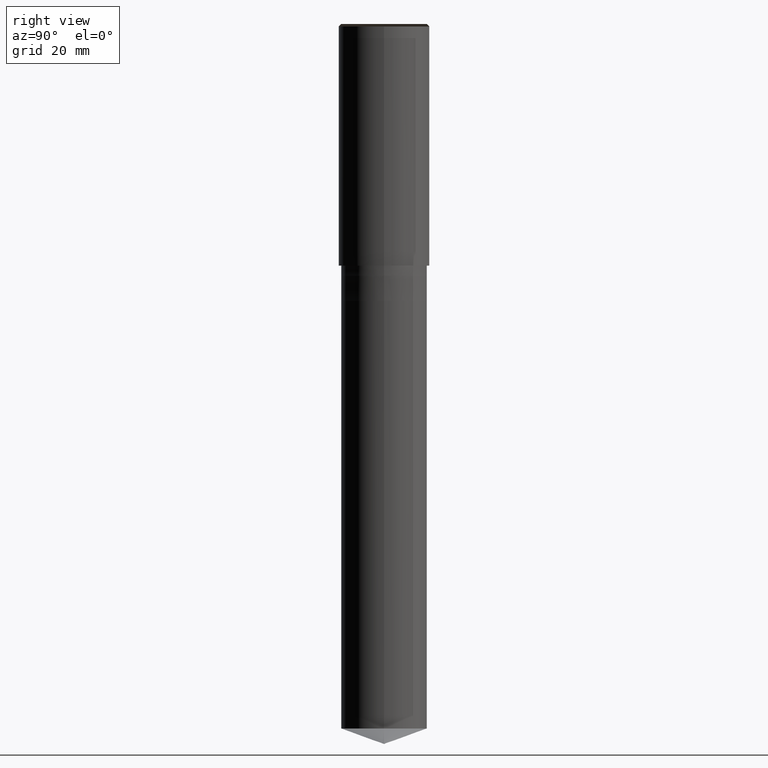
[diagram: clean part render]
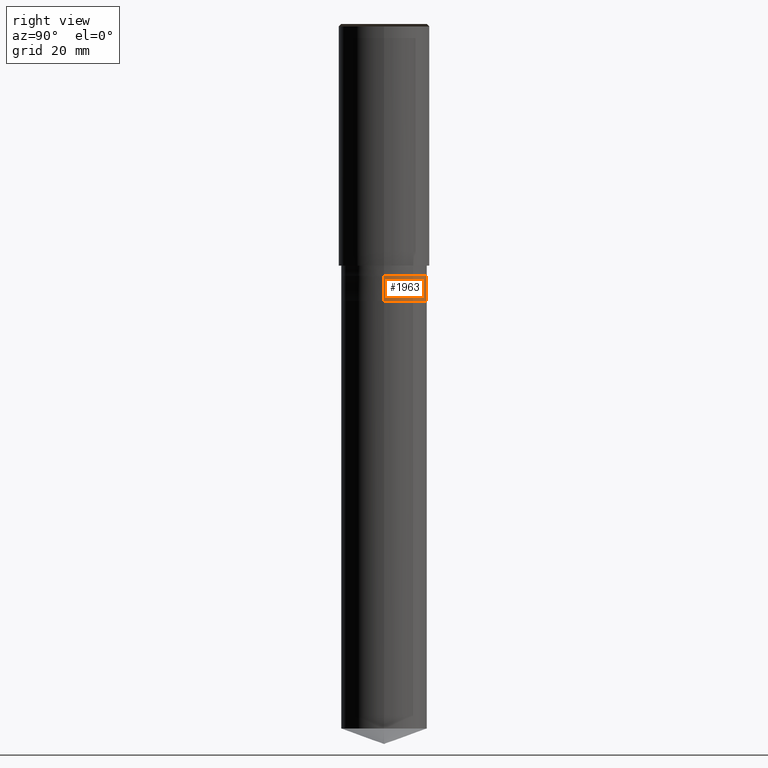
[diagram: same view with one face highlighted and labeled with its STEP entity id]
A machine part, right view. The second image highlights one B-rep face of the part: STEP entity #1963.
In plain terms, the highlighted face is a freeform B-spline surface patch.
Its self-contained STEP definition (entity closure, byte-faithful):
#1762=CARTESIAN_POINT('',(8.5,0.0,-7.0));
#1763=CARTESIAN_POINT('',(8.5,8.5,-7.0));
#1764=CARTESIAN_POINT('',(0.0,8.5,-7.0));
#1765=CARTESIAN_POINT('',(-8.5,8.5,-7.0));
#1766=CARTESIAN_POINT('',(-8.5,0.0,-7.0));
#1774=CARTESIAN_POINT('',(8.5,0.0,-2.0));
#1775=CARTESIAN_POINT('',(8.5,8.5,-2.0));
#1776=CARTESIAN_POINT('',(0.0,8.5,-2.0));
#1777=CARTESIAN_POINT('',(-8.5,8.5,-2.0));
#1778=CARTESIAN_POINT('',(-8.5,0.0,-2.0));
#1944=(
BOUNDED_SURFACE()
B_SPLINE_SURFACE(1,2,(
(#1762,#1763,#1764,#1765,#1766),
(#1774,#1775,#1776,#1777,#1778)
), .UNSPECIFIED.,.F.,.F.,.F.)
B_SPLINE_SURFACE_WITH_KNOTS((2,2),(3,2,3),(
0.0,1.0),(
0.0,0.5,1.0), .UNSPECIFIED.)
GEOMETRIC_REPRESENTATION_ITEM()
RATIONAL_B_SPLINE_SURFACE(((1.0,0.707106781187,1.0,0.707106781187,1.0),
(1.0,0.707106781187,1.0,0.707106781187,1.0)
))
REPRESENTATION_ITEM('')
SURFACE()
);
#1945=(
BOUNDED_CURVE()
B_SPLINE_CURVE(2,(#1766,#1765,#1764,#1763,#1762),.UNSPECIFIED.,.F.,.F.)
B_SPLINE_CURVE_WITH_KNOTS((3,2,3),
(0.0,0.5,1.0),.UNSPECIFIED.)
CURVE()
GEOMETRIC_REPRESENTATION_ITEM()
RATIONAL_B_SPLINE_CURVE((1.0,0.707106781187,1.0,0.707106781187,1.0))
REPRESENTATION_ITEM('')
);
#1946=(
BOUNDED_CURVE()
B_SPLINE_CURVE(1,(#1762,#1774),.UNSPECIFIED.,.F.,.F.)
B_SPLINE_CURVE_WITH_KNOTS((2,2),
(0.0,1.0),.UNSPECIFIED.)
CURVE()
GEOMETRIC_REPRESENTATION_ITEM()
RATIONAL_B_SPLINE_CURVE((1.0,1.0))
REPRESENTATION_ITEM('')
);
#1947=(
BOUNDED_CURVE()
B_SPLINE_CURVE(2,(#1774,#1775,#1776,#1777,#1778),.UNSPECIFIED.,.F.,.F.)
B_SPLINE_CURVE_WITH_KNOTS((3,2,3),
(0.0,0.5,1.0),.UNSPECIFIED.)
CURVE()
GEOMETRIC_REPRESENTATION_ITEM()
RATIONAL_B_SPLINE_CURVE((1.0,0.707106781187,1.0,0.707106781187,1.0))
REPRESENTATION_ITEM('')
);
#1948=(
BOUNDED_CURVE()
B_SPLINE_CURVE(1,(#1778,#1766),.UNSPECIFIED.,.F.,.F.)
B_SPLINE_CURVE_WITH_KNOTS((2,2),
(0.0,1.0),.UNSPECIFIED.)
CURVE()
GEOMETRIC_REPRESENTATION_ITEM()
RATIONAL_B_SPLINE_CURVE((1.0,1.0))
REPRESENTATION_ITEM('')
);
#1949=VERTEX_POINT('',#1762);
#1950=VERTEX_POINT('',#1766);
#1951=VERTEX_POINT('',#1774);
#1952=VERTEX_POINT('',#1778);
#1953=EDGE_CURVE('',#1950,#1949,#1945,.T.);
#1954=EDGE_CURVE('',#1949,#1951,#1946,.T.);
#1955=EDGE_CURVE('',#1951,#1952,#1947,.T.);
#1956=EDGE_CURVE('',#1952,#1950,#1948,.T.);
#1957=ORIENTED_EDGE('',*,*,#1953,.T.);
#1958=ORIENTED_EDGE('',*,*,#1954,.T.);
#1959=ORIENTED_EDGE('',*,*,#1955,.T.);
#1960=ORIENTED_EDGE('',*,*,#1956,.T.);
#1961=EDGE_LOOP('',(#1957,#1958,#1959,#1960));
#1962=FACE_OUTER_BOUND('',#1961,.T.);
#1963=ADVANCED_FACE('',(#1962),#1944,.T.);